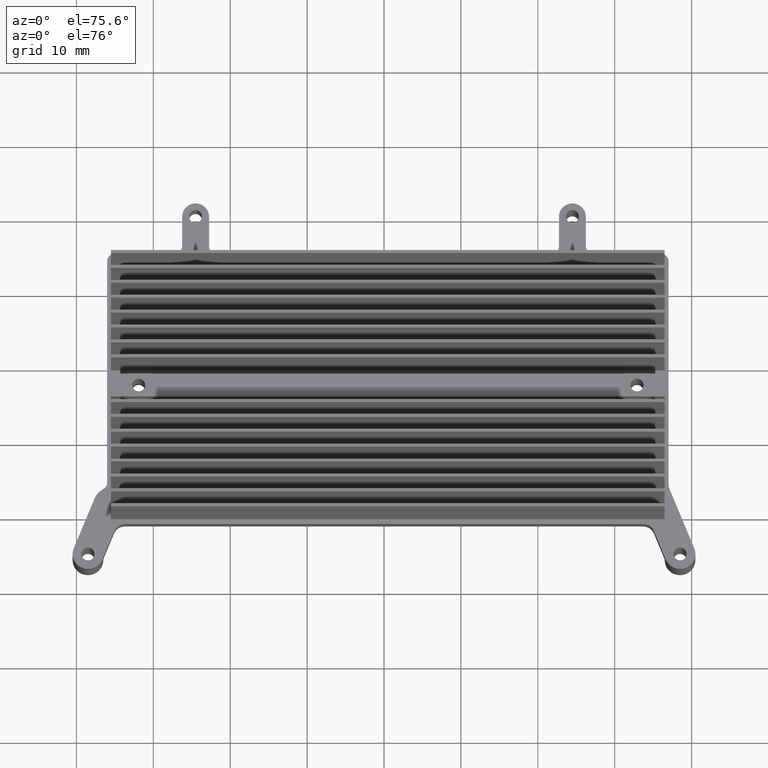
[diagram: clean part render]
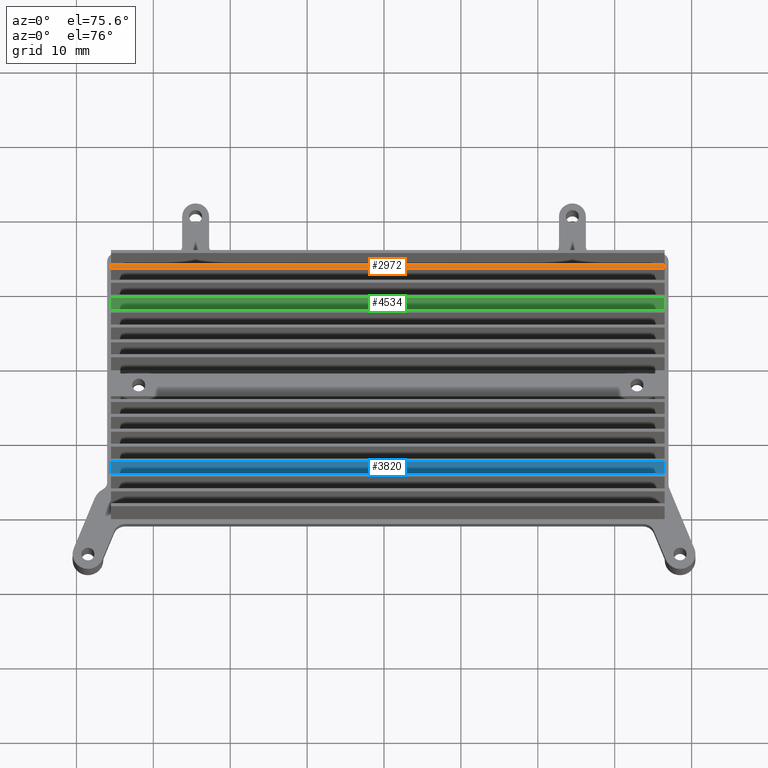
[diagram: same view with three faces highlighted in distinct colors, each labeled with its STEP entity id]
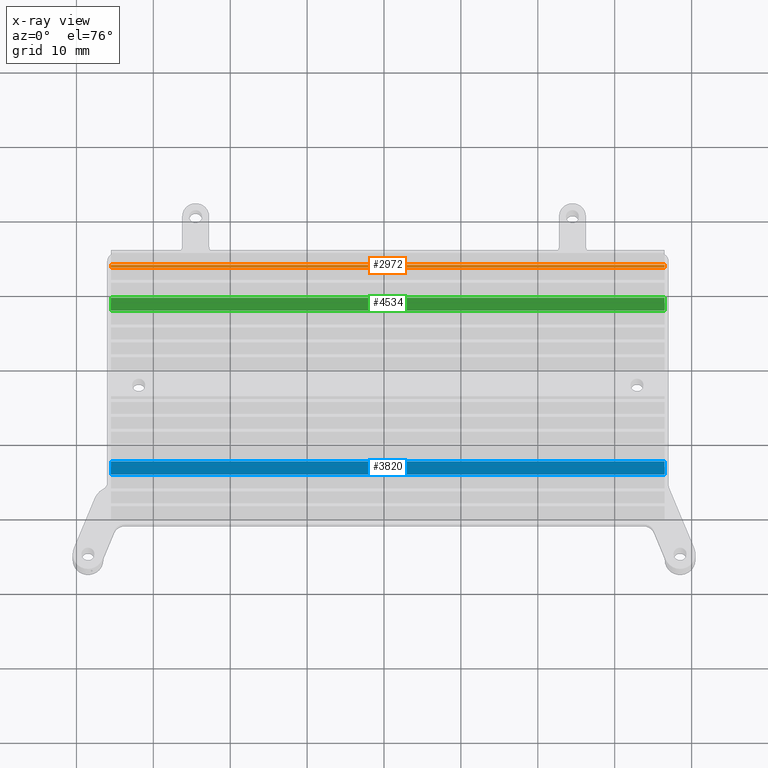
[diagram: x-ray of the same camera — body ghosted, the three highlighted faces saturated]
A machine part, auxiliary view with three faces highlighted in distinct colors.
The next image is the same camera in x-ray (body ghosted, the three faces saturated) — at least one of them is partly hidden behind the body in this view.
Their STEP definitions:

[orange] entity #2972 — the highlighted planar face has unit normal (0, 0, 1).
#4 = DIRECTION ( 'NONE',  ( 1.000000000000000000, 0.0000000000000000000, 0.0000000000000000000 ) ) ;
#132 = VERTEX_POINT ( 'NONE', #2359 ) ;
#225 = CARTESIAN_POINT ( 'NONE',  ( 1.000599999999999934, 11.18771990245999959, -0.5000000000000000000 ) ) ;
#312 = LINE ( 'NONE', #225, #4555 ) ;
#432 = ORIENTED_EDGE ( 'NONE', *, *, #2326, .F. ) ;
#678 = CARTESIAN_POINT ( 'NONE',  ( 36.49940000000000140, -21.76026868239999956, -0.5000000000000000000 ) ) ;
#716 = FACE_OUTER_BOUND ( 'NONE', #2814, .T. ) ;
#767 = VERTEX_POINT ( 'NONE', #1178 ) ;
#876 = EDGE_CURVE ( 'NONE', #3366, #132, #2722, .T. ) ;
#1178 = CARTESIAN_POINT ( 'NONE',  ( 36.49940000000000140, 11.58771990245999817, -0.5000000000000000000 ) ) ;
#1188 = VECTOR ( 'NONE', #1526, 1000.000000000000000 ) ;
#1526 = DIRECTION ( 'NONE',  ( 1.000000000000000000, 0.0000000000000000000, 0.0000000000000000000 ) ) ;
#1647 = EDGE_CURVE ( 'NONE', #4187, #132, #312, .T. ) ;
#1910 = LINE ( 'NONE', #678, #4163 ) ;
#2112 = PLANE ( 'NONE',  #3653 ) ;
#2125 = DIRECTION ( 'NONE',  ( 0.0000000000000000000, -1.000000000000000000, 0.0000000000000000000 ) ) ;
#2326 = EDGE_CURVE ( 'NONE', #3366, #767, #3037, .T. ) ;
#2359 = CARTESIAN_POINT ( 'NONE',  ( -35.49940000000000140, 11.18771990245999959, -0.5000000000000000000 ) ) ;
#2486 = CARTESIAN_POINT ( 'NONE',  ( -35.49940000000000140, 11.58771990245999817, -0.5000000000000000000 ) ) ;
#2688 = DIRECTION ( 'NONE',  ( -1.000000000000000000, 0.0000000000000000000, 0.0000000000000000000 ) ) ;
#2709 = DIRECTION ( 'NONE',  ( 0.0000000000000000000, -1.000000000000000000, 0.0000000000000000000 ) ) ;
#2722 = LINE ( 'NONE', #2971, #3056 ) ;
#2814 = EDGE_LOOP ( 'NONE', ( #3205, #3853, #432, #2880 ) ) ;
#2880 = ORIENTED_EDGE ( 'NONE', *, *, #876, .T. ) ;
#2971 = CARTESIAN_POINT ( 'NONE',  ( -35.49940000000000140, 11.18771990245999959, -0.5000000000000000000 ) ) ;
#2972 = ADVANCED_FACE ( 'NONE', ( #716 ), #2112, .T. ) ;
#3037 = LINE ( 'NONE', #3999, #1188 ) ;
#3056 = VECTOR ( 'NONE', #2709, 1000.000000000000000 ) ;
#3205 = ORIENTED_EDGE ( 'NONE', *, *, #1647, .F. ) ;
#3366 = VERTEX_POINT ( 'NONE', #2486 ) ;
#3653 = AXIS2_PLACEMENT_3D ( 'NONE', #4568, #4226, #4 ) ;
#3853 = ORIENTED_EDGE ( 'NONE', *, *, #4590, .F. ) ;
#3999 = CARTESIAN_POINT ( 'NONE',  ( 1.000599999999999934, 11.58771990245999817, -0.5000000000000000000 ) ) ;
#4163 = VECTOR ( 'NONE', #2125, 1000.000000000000000 ) ;
#4187 = VERTEX_POINT ( 'NONE', #4458 ) ;
#4226 = DIRECTION ( 'NONE',  ( 0.0000000000000000000, 0.0000000000000000000, 1.000000000000000000 ) ) ;
#4458 = CARTESIAN_POINT ( 'NONE',  ( 36.49940000000000140, 11.18771990245999959, -0.5000000000000000000 ) ) ;
#4555 = VECTOR ( 'NONE', #2688, 1000.000000000000000 ) ;
#4568 = CARTESIAN_POINT ( 'NONE',  ( 1.000599999999999934, 11.18771990245999959, -0.5000000000000000000 ) ) ;
#4590 = EDGE_CURVE ( 'NONE', #767, #4187, #1910, .T. ) ;

[blue] entity #3820 — the highlighted planar face has unit normal (0, 0.9986, -0.0535).
#220 = CARTESIAN_POINT ( 'NONE',  ( -35.49940000000000140, -14.81228009753999864, -0.5000000000000000000 ) ) ;
#257 = VECTOR ( 'NONE', #2669, 1000.000000000000114 ) ;
#407 = CARTESIAN_POINT ( 'NONE',  ( 1.000599999999999934, -14.81228009753999864, -0.5000000000000000000 ) ) ;
#410 = LINE ( 'NONE', #696, #3915 ) ;
#440 = DIRECTION ( 'NONE',  ( -1.000000000000000000, 0.0000000000000000000, 0.0000000000000000000 ) ) ;
#451 = CARTESIAN_POINT ( 'NONE',  ( 36.49940000000000140, -15.11228009753999935, -6.100000000000000533 ) ) ;
#498 = AXIS2_PLACEMENT_3D ( 'NONE', #407, #3546, #440 ) ;
#662 = CARTESIAN_POINT ( 'NONE',  ( -35.49940000000000140, -15.11228009753999935, -6.100000000000000533 ) ) ;
#696 = CARTESIAN_POINT ( 'NONE',  ( 51.58500000000000085, -15.11228009753999935, -6.100000000000000533 ) ) ;
#817 = VERTEX_POINT ( 'NONE', #451 ) ;
#868 = EDGE_CURVE ( 'NONE', #2973, #2991, #2612, .T. ) ;
#967 = ORIENTED_EDGE ( 'NONE', *, *, #1256, .F. ) ;
#974 = ORIENTED_EDGE ( 'NONE', *, *, #2680, .F. ) ;
#1256 = EDGE_CURVE ( 'NONE', #2991, #1729, #3288, .T. ) ;
#1436 = PLANE ( 'NONE',  #498 ) ;
#1729 = VERTEX_POINT ( 'NONE', #3125 ) ;
#1884 = CARTESIAN_POINT ( 'NONE',  ( 36.49940000000000140, -14.81228009753999864, -0.5000000000000000000 ) ) ;
#1930 = ORIENTED_EDGE ( 'NONE', *, *, #2115, .F. ) ;
#2081 = CARTESIAN_POINT ( 'NONE',  ( -35.49940000000000140, -14.81228009753999864, -0.5000000000000000000 ) ) ;
#2115 = EDGE_CURVE ( 'NONE', #817, #2973, #410, .T. ) ;
#2478 = DIRECTION ( 'NONE',  ( 1.000000000000000000, 0.0000000000000000000, 0.0000000000000000000 ) ) ;
#2543 = VECTOR ( 'NONE', #2920, 1000.000000000000114 ) ;
#2592 = LINE ( 'NONE', #1884, #2543 ) ;
#2612 = LINE ( 'NONE', #220, #257 ) ;
#2669 = DIRECTION ( 'NONE',  ( 0.0000000000000000000, 0.05349472137160939805, 0.9985681322700888929 ) ) ;
#2680 = EDGE_CURVE ( 'NONE', #1729, #817, #2592, .T. ) ;
#2808 = DIRECTION ( 'NONE',  ( -1.000000000000000000, 0.0000000000000000000, 0.0000000000000000000 ) ) ;
#2920 = DIRECTION ( 'NONE',  ( 0.0000000000000000000, -0.05349472137160939805, -0.9985681322700888929 ) ) ;
#2973 = VERTEX_POINT ( 'NONE', #662 ) ;
#2991 = VERTEX_POINT ( 'NONE', #2081 ) ;
#3125 = CARTESIAN_POINT ( 'NONE',  ( 36.49940000000000140, -14.81228009753999864, -0.5000000000000000000 ) ) ;
#3288 = LINE ( 'NONE', #3515, #3752 ) ;
#3515 = CARTESIAN_POINT ( 'NONE',  ( 1.000599999999999934, -14.81228009753999864, -0.5000000000000000000 ) ) ;
#3546 = DIRECTION ( 'NONE',  ( 0.0000000000000000000, 0.9985681322700890039, -0.05349472137160940499 ) ) ;
#3669 = ORIENTED_EDGE ( 'NONE', *, *, #868, .F. ) ;
#3737 = EDGE_LOOP ( 'NONE', ( #967, #3669, #1930, #974 ) ) ;
#3752 = VECTOR ( 'NONE', #2478, 1000.000000000000000 ) ;
#3820 = ADVANCED_FACE ( 'NONE', ( #4581 ), #1436, .F. ) ;
#3915 = VECTOR ( 'NONE', #2808, 1000.000000000000000 ) ;
#4581 = FACE_OUTER_BOUND ( 'NONE', #3737, .T. ) ;

[green] entity #4534 — the highlighted planar face has unit normal (0, -0.9986, 0.0535).
#61 = EDGE_CURVE ( 'NONE', #2040, #4146, #1796, .T. ) ;
#76 = CARTESIAN_POINT ( 'NONE',  ( 1.000599999999999934, 6.887719902460000654, -6.100000000000000533 ) ) ;
#175 = CARTESIAN_POINT ( 'NONE',  ( -35.49940000000000140, 6.887719902460000654, -6.100000000000000533 ) ) ;
#213 = CARTESIAN_POINT ( 'NONE',  ( 1.000599999999999934, 7.187719902459989818, -0.5000000000000000000 ) ) ;
#411 = LINE ( 'NONE', #3176, #1782 ) ;
#467 = AXIS2_PLACEMENT_3D ( 'NONE', #76, #513, #2959 ) ;
#513 = DIRECTION ( 'NONE',  ( 0.0000000000000000000, -0.9985681322700890039, 0.05349472137160940499 ) ) ;
#621 = DIRECTION ( 'NONE',  ( -1.000000000000000000, 0.0000000000000000000, 0.0000000000000000000 ) ) ;
#632 = ORIENTED_EDGE ( 'NONE', *, *, #61, .F. ) ;
#772 = VECTOR ( 'NONE', #621, 1000.000000000000000 ) ;
#795 = CARTESIAN_POINT ( 'NONE',  ( -35.49940000000000140, 7.187719902459989818, -0.5000000000000000000 ) ) ;
#962 = EDGE_CURVE ( 'NONE', #3260, #2597, #4390, .T. ) ;
#1424 = DIRECTION ( 'NONE',  ( 0.0000000000000000000, -0.05349472137160939805, -0.9985681322700888929 ) ) ;
#1659 = EDGE_LOOP ( 'NONE', ( #3379, #632, #2833, #4474 ) ) ;
#1782 = VECTOR ( 'NONE', #1424, 1000.000000000000114 ) ;
#1796 = LINE ( 'NONE', #3361, #2510 ) ;
#1865 = LINE ( 'NONE', #3263, #4584 ) ;
#1881 = EDGE_CURVE ( 'NONE', #2597, #4146, #411, .T. ) ;
#2040 = VERTEX_POINT ( 'NONE', #4530 ) ;
#2137 = CARTESIAN_POINT ( 'NONE',  ( 36.49940000000000140, 7.187719902459989818, -0.5000000000000000000 ) ) ;
#2510 = VECTOR ( 'NONE', #3041, 1000.000000000000000 ) ;
#2597 = VERTEX_POINT ( 'NONE', #795 ) ;
#2833 = ORIENTED_EDGE ( 'NONE', *, *, #3341, .T. ) ;
#2959 = DIRECTION ( 'NONE',  ( -1.000000000000000000, 0.0000000000000000000, 0.0000000000000000000 ) ) ;
#3041 = DIRECTION ( 'NONE',  ( -1.000000000000000000, 0.0000000000000000000, 0.0000000000000000000 ) ) ;
#3176 = CARTESIAN_POINT ( 'NONE',  ( -35.49940000000000140, 6.887719902460000654, -6.100000000000000533 ) ) ;
#3260 = VERTEX_POINT ( 'NONE', #2137 ) ;
#3263 = CARTESIAN_POINT ( 'NONE',  ( 36.49940000000000140, 6.887719902460000654, -6.100000000000000533 ) ) ;
#3341 = EDGE_CURVE ( 'NONE', #2040, #3260, #1865, .T. ) ;
#3350 = FACE_OUTER_BOUND ( 'NONE', #1659, .T. ) ;
#3361 = CARTESIAN_POINT ( 'NONE',  ( 51.58500000000000085, 6.887719902460000654, -6.100000000000000533 ) ) ;
#3379 = ORIENTED_EDGE ( 'NONE', *, *, #1881, .T. ) ;
#3558 = DIRECTION ( 'NONE',  ( 0.0000000000000000000, 0.05349472137160939805, 0.9985681322700888929 ) ) ;
#3998 = PLANE ( 'NONE',  #467 ) ;
#4146 = VERTEX_POINT ( 'NONE', #175 ) ;
#4390 = LINE ( 'NONE', #213, #772 ) ;
#4474 = ORIENTED_EDGE ( 'NONE', *, *, #962, .T. ) ;
#4530 = CARTESIAN_POINT ( 'NONE',  ( 36.49940000000000140, 6.887719902460000654, -6.100000000000000533 ) ) ;
#4534 = ADVANCED_FACE ( 'NONE', ( #3350 ), #3998, .T. ) ;
#4584 = VECTOR ( 'NONE', #3558, 1000.000000000000114 ) ;